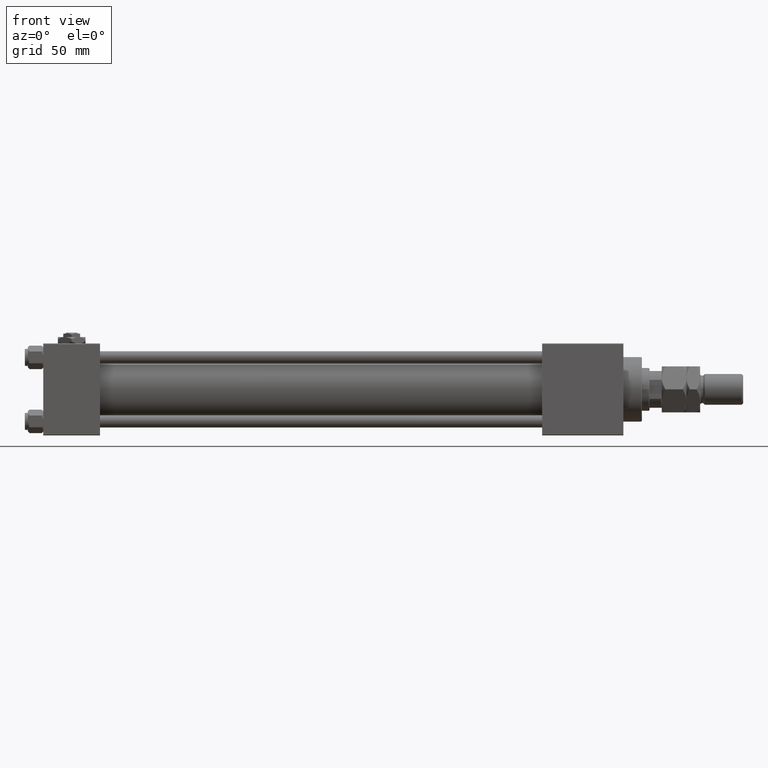
[diagram: clean part render]
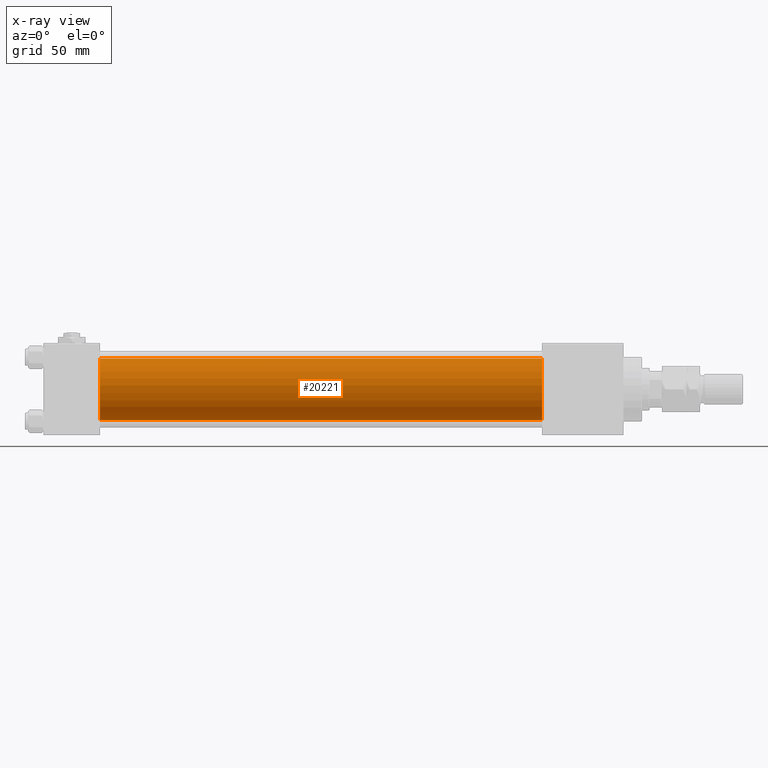
[diagram: x-ray — body ghosted, one internal face saturated and labeled with its STEP entity id]
A machine part, front view, then the same camera in x-ray: the body is ghosted and one INTERNAL B-rep face — a face not visible from any outside direction — is saturated and labeled: STEP entity #20221.
In plain terms, the highlighted cylindrical surface (edge-blend (fillet) strip) has radius 20 mm, axis along (-1, -0, -0).
Its self-contained STEP definition (entity closure, byte-faithful):
#1335 = DIRECTION ( 'NONE',  ( 0.000000000000000000, 0.000000000000000000, -1.000000000000000000 ) ) ;
#1924 = DIRECTION ( 'NONE',  ( 1.000000000000000000, 0.000000000000000000, 0.000000000000000000 ) ) ;
#5128 = DIRECTION ( 'NONE',  ( 1.000000000000000000, 0.000000000000000000, 0.000000000000000000 ) ) ;
#9134 = LINE ( 'NONE', #18318, #21478 ) ;
#12478 = ORIENTED_EDGE ( 'NONE', *, *, #28627, .T. ) ;
#12703 = CARTESIAN_POINT ( 'NONE',  ( 324.9999999999999432, -2.602085213965210642E-15, 0.000000000000000000 ) ) ;
#15145 = AXIS2_PLACEMENT_3D ( 'NONE', #50783, #17199, #41844 ) ;
#17199 = DIRECTION ( 'NONE',  ( -1.000000000000000000, -0.000000000000000000, -0.000000000000000000 ) ) ;
#18318 = CARTESIAN_POINT ( 'NONE',  ( 324.9999999999999432, -1.527916156705042519E-16, -20.00000000000000000 ) ) ;
#18446 = DIRECTION ( 'NONE',  ( 0.000000000000000000, 0.000000000000000000, -1.000000000000000000 ) ) ;
#18829 = VERTEX_POINT ( 'NONE', #27588 ) ;
#19278 = ORIENTED_EDGE ( 'NONE', *, *, #46724, .F. ) ;
#20221 = ADVANCED_FACE ( 'NONE', ( #33995 ), #49978, .F. ) ;
#21392 = EDGE_LOOP ( 'NONE', ( #12478, #21436, #43408, #19278 ) ) ;
#21397 = CIRCLE ( 'NONE', #45622, 20.00000000000000000 ) ;
#21436 = ORIENTED_EDGE ( 'NONE', *, *, #35458, .T. ) ;
#21478 = VECTOR ( 'NONE', #50568, 1000.000000000000000 ) ;
#21521 = DIRECTION ( 'NONE',  ( -1.000000000000000000, -0.000000000000000000, -0.000000000000000000 ) ) ;
#23045 = CARTESIAN_POINT ( 'NONE',  ( 37.00000000000000000, -2.602085213965210642E-15, 0.000000000000000000 ) ) ;
#27487 = VERTEX_POINT ( 'NONE', #32813 ) ;
#27588 = CARTESIAN_POINT ( 'NONE',  ( 324.9999999999999432, -1.527916156705042519E-16, -20.00000000000000000 ) ) ;
#28627 = EDGE_CURVE ( 'NONE', #41520, #18829, #21397, .T. ) ;
#32813 = CARTESIAN_POINT ( 'NONE',  ( 37.00000000000000000, -1.527916156705042519E-16, -20.00000000000000000 ) ) ;
#33708 = CIRCLE ( 'NONE', #43220, 20.00000000000000000 ) ;
#33995 = FACE_OUTER_BOUND ( 'NONE', #21392, .T. ) ;
#34364 = EDGE_CURVE ( 'NONE', #39718, #27487, #33708, .T. ) ;
#35458 = EDGE_CURVE ( 'NONE', #18829, #27487, #9134, .T. ) ;
#38917 = CARTESIAN_POINT ( 'NONE',  ( 37.00000000000000000, -2.602085213965210642E-15, 20.00000000000000000 ) ) ;
#39718 = VERTEX_POINT ( 'NONE', #38917 ) ;
#41122 = CARTESIAN_POINT ( 'NONE',  ( 324.9999999999999432, -2.602085213965210642E-15, 20.00000000000000000 ) ) ;
#41300 = LINE ( 'NONE', #41571, #49821 ) ;
#41520 = VERTEX_POINT ( 'NONE', #41122 ) ;
#41571 = CARTESIAN_POINT ( 'NONE',  ( 324.9999999999999432, -2.602085213965210642E-15, 20.00000000000000000 ) ) ;
#41844 = DIRECTION ( 'NONE',  ( 0.000000000000000000, 0.000000000000000000, 1.000000000000000000 ) ) ;
#43220 = AXIS2_PLACEMENT_3D ( 'NONE', #23045, #1924, #18446 ) ;
#43408 = ORIENTED_EDGE ( 'NONE', *, *, #34364, .F. ) ;
#45622 = AXIS2_PLACEMENT_3D ( 'NONE', #12703, #5128, #1335 ) ;
#46724 = EDGE_CURVE ( 'NONE', #41520, #39718, #41300, .T. ) ;
#49821 = VECTOR ( 'NONE', #21521, 1000.000000000000000 ) ;
#49978 = CYLINDRICAL_SURFACE ( 'NONE', #15145, 20.00000000000000000 ) ;
#50568 = DIRECTION ( 'NONE',  ( -1.000000000000000000, -0.000000000000000000, -0.000000000000000000 ) ) ;
#50783 = CARTESIAN_POINT ( 'NONE',  ( 324.9999999999999432, -2.602085213965210642E-15, 0.000000000000000000 ) ) ;